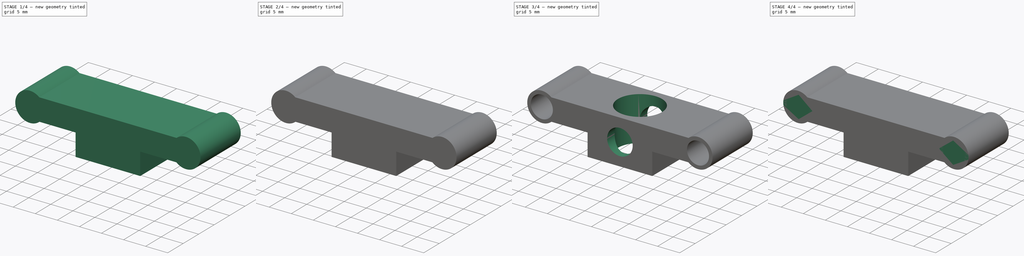
[diagram: build sequence overview — one tinted view per stage of 4, left to right]
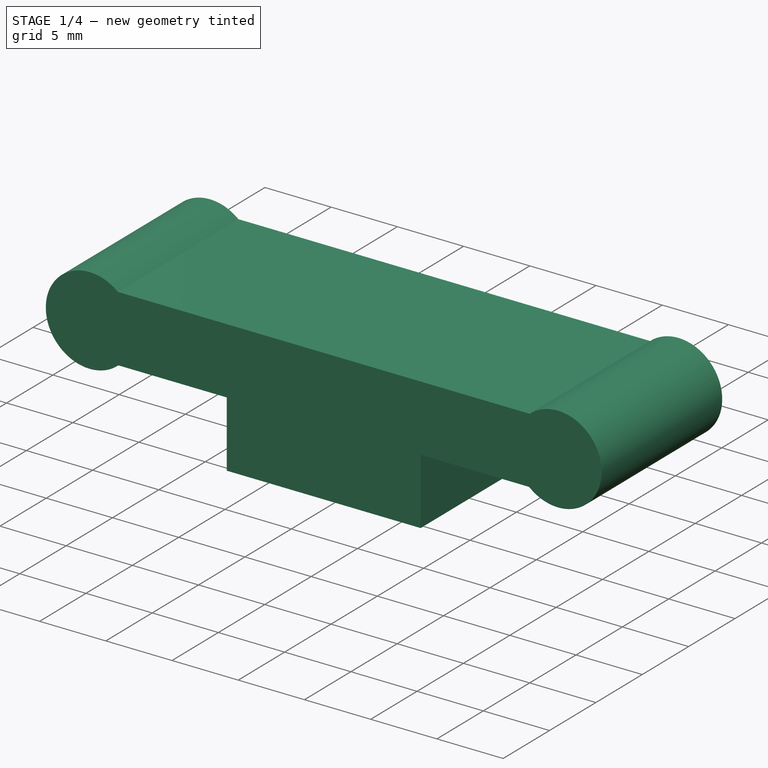
[diagram: stage 1 of 4 — iso view after this stage's code; geometry added in this stage tinted green]
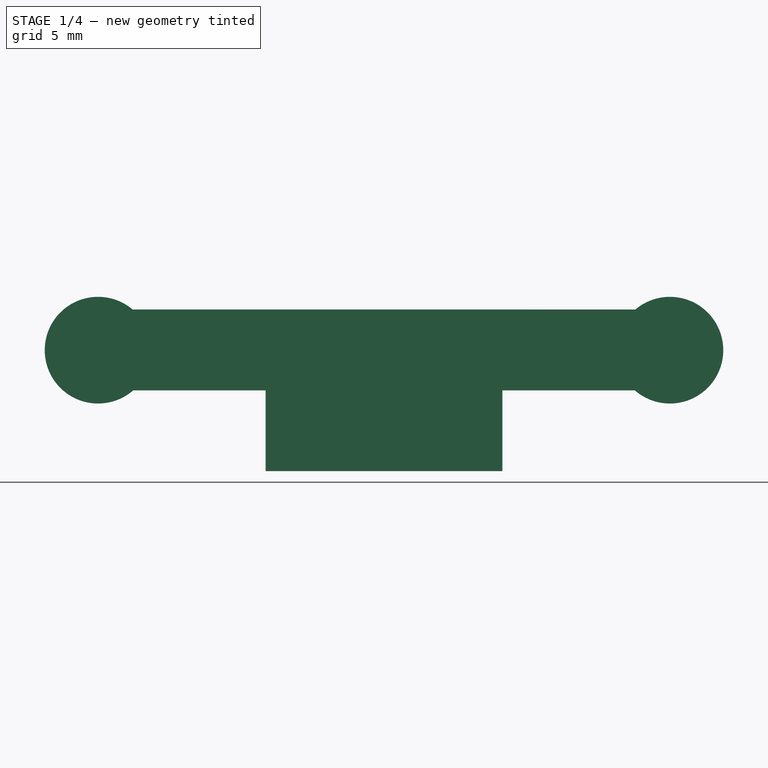
[diagram: stage 1 of 4 — front view after this stage's code; geometry added in this stage tinted green]
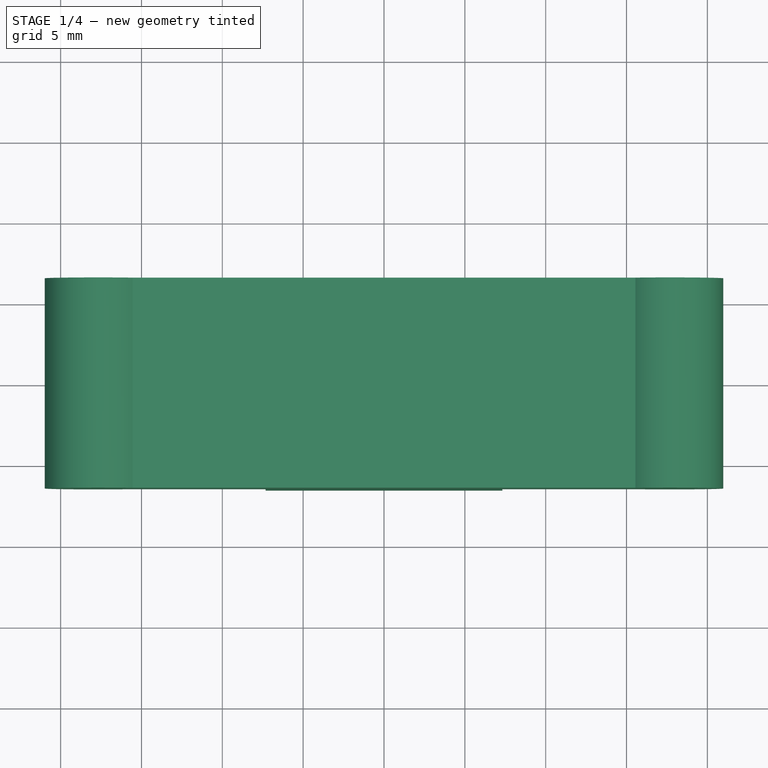
[diagram: stage 1 of 4 — top view after this stage's code; geometry added in this stage tinted green]
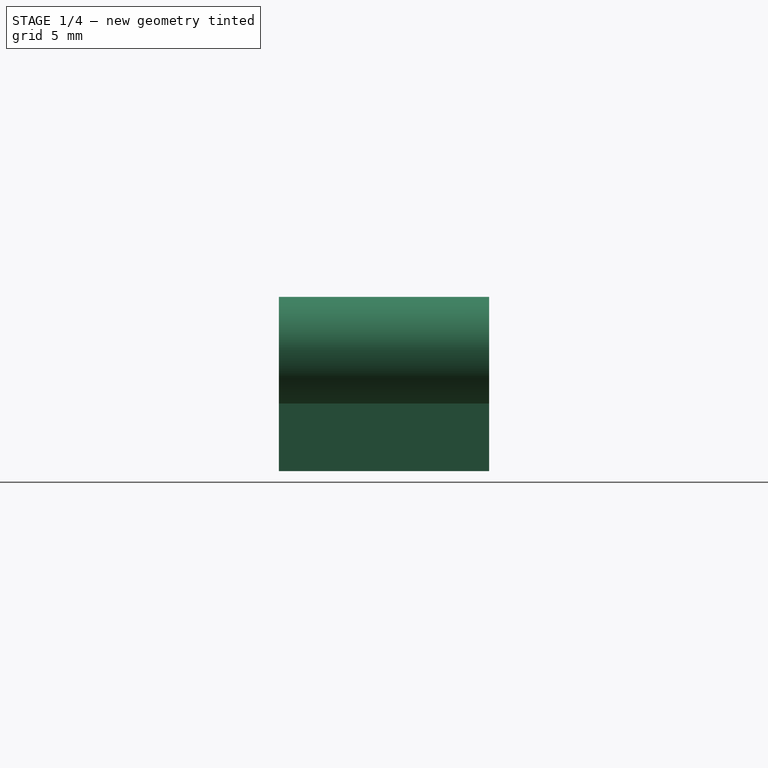
[diagram: stage 1 of 4 — right view after this stage's code; geometry added in this stage tinted green]
FCSTD DOCUMENT  (FreeCAD 0.16R6705 (Git))
Label: porta_cicalino_qavx2
License: All rights reserved
LicenseURL: http://it.wikipedia.org/wiki/<copyright redacted>
objects: Sketcher::SketchObject×7, PartDesign::Pad×4, Part::MultiFuse×3, PartDesign::Pocket×3, Part::Mirroring×1, Part::Cut×1, PartDesign::Mirrored×1, PartDesign::MultiTransform×1
note: 28 computed .brp shape members not serialized (recipe doc carries the construction recipe); baked Part::Feature solids carry a one-line shape summary decoded from their .brp

FEATURE [Sketcher::SketchObject] Sketch
  sketch-geometry (4):
    g0: LineSegment StartX=-17.5 StartY=6.5 StartZ=0 EndX=17.5 EndY=6.5 EndZ=0
    g1: LineSegment StartX=17.5 StartY=6.5 StartZ=0 EndX=17.5 EndY=-6.5 EndZ=0
    g2: LineSegment StartX=17.5 StartY=-6.5 StartZ=0 EndX=-17.5 EndY=-6.5 EndZ=0
    g3: LineSegment StartX=-17.5 StartY=-6.5 StartZ=0 EndX=-17.5 EndY=6.5 EndZ=0
  constraints (12):
    c: Coincident(g0,g1)
    c: Coincident(g1,g2)
    c: Coincident(g2,g3)
    c: Coincident(g3,g0)
    c: Horizontal(g0)
    c: Horizontal(g2)
    c: Vertical(g1)
    c: Vertical(g3)
    c: Symmetric(g0,g0,g-2)
    c: Symmetric(g0,g1,g-1)
    c: DistanceX(g0,g0) = 35
    c: DistanceY(g2,g0) = 13
FEATURE [PartDesign::Pad] Pad
  Length = 5
  Length2 = 100
  Sketch = -> Sketch
  Type = 0
FEATURE [Sketcher::SketchObject] Sketch003
  Placement = pos=(0,-6.5,0) rot=(1,0,0;1.5708rad)
  Support = -> Pad [Face3]
  sketch-geometry (2):
    g0: Circle CenterX=17.6839 CenterY=2.4839 CenterZ=0 NormalX=0 NormalY=0 NormalZ=1 Radius=3.3
    g1: Circle CenterX=-17.6839 CenterY=2.4839 CenterZ=0 NormalX=0 NormalY=0 NormalZ=1 Radius=3.3
  constraints (2):
    c: Radius(g0) = 3.3
    c: Radius(g1) = 3.3
FEATURE [PartDesign::Pad] Pad003
  Length = 13
  Length2 = 100
  Reversed = true
  Sketch = -> Sketch003
  Type = 0
FEATURE [Sketcher::SketchObject] Sketch005
  Placement = pos=(0,0,0) rot=(1,0,0;3.14159rad)
  sketch-geometry (4):
    g0: LineSegment StartX=-7.31822 StartY=6.5 StartZ=0 EndX=7.31822 EndY=6.5 EndZ=0
    g1: LineSegment StartX=7.31822 StartY=6.5 StartZ=0 EndX=7.31822 EndY=-6.5 EndZ=0
    g2: LineSegment StartX=7.31822 StartY=-6.5 StartZ=0 EndX=-7.31822 EndY=-6.5 EndZ=0
    g3: LineSegment StartX=-7.31822 StartY=-6.5 StartZ=0 EndX=-7.31822 EndY=6.5 EndZ=0
  constraints (9):
    c: Coincident(g0,g1)
    c: Coincident(g1,g2)
    c: Coincident(g2,g3)
    c: Coincident(g3,g0)
    c: Horizontal(g0)
    c: Horizontal(g2)
    c: Vertical(g1)
    c: Vertical(g3)
    c: Symmetric(g0,g0,g-2)
FEATURE [PartDesign::Pad] Pad004
  Length = 5
  Length2 = 100
  Placement = pos=(0,0,0) rot=(1,0,0;3.14159rad)
  Sketch = -> Sketch005
  Type = 0
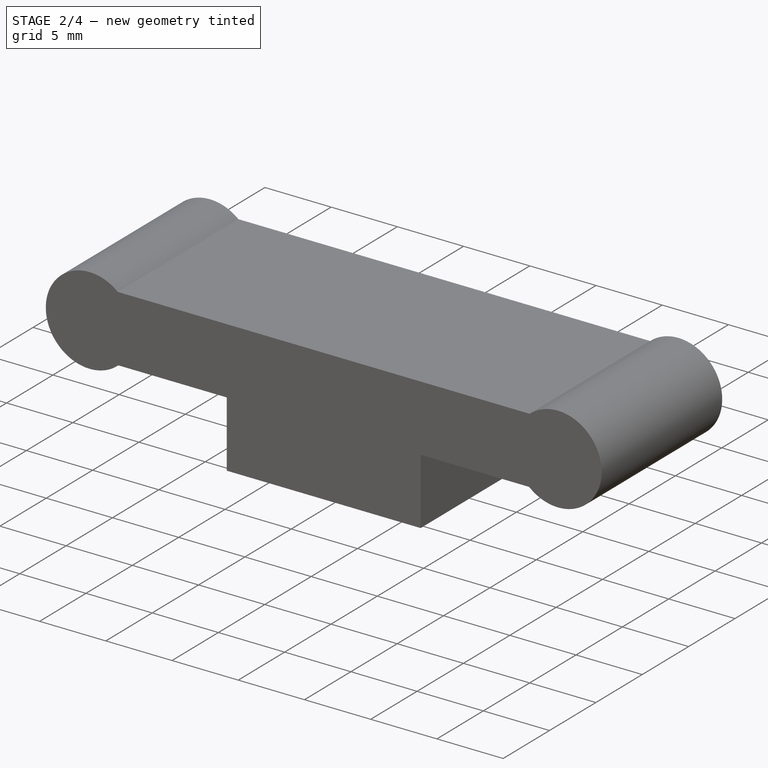
[diagram: stage 2 of 4 — iso view after this stage's code; geometry added in this stage tinted green]
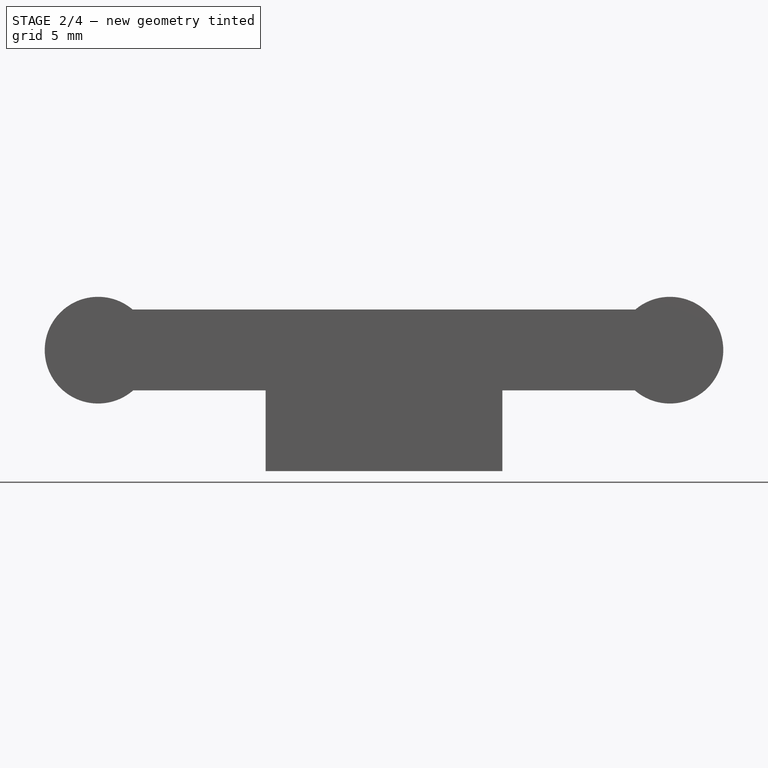
[diagram: stage 2 of 4 — front view after this stage's code; geometry added in this stage tinted green]
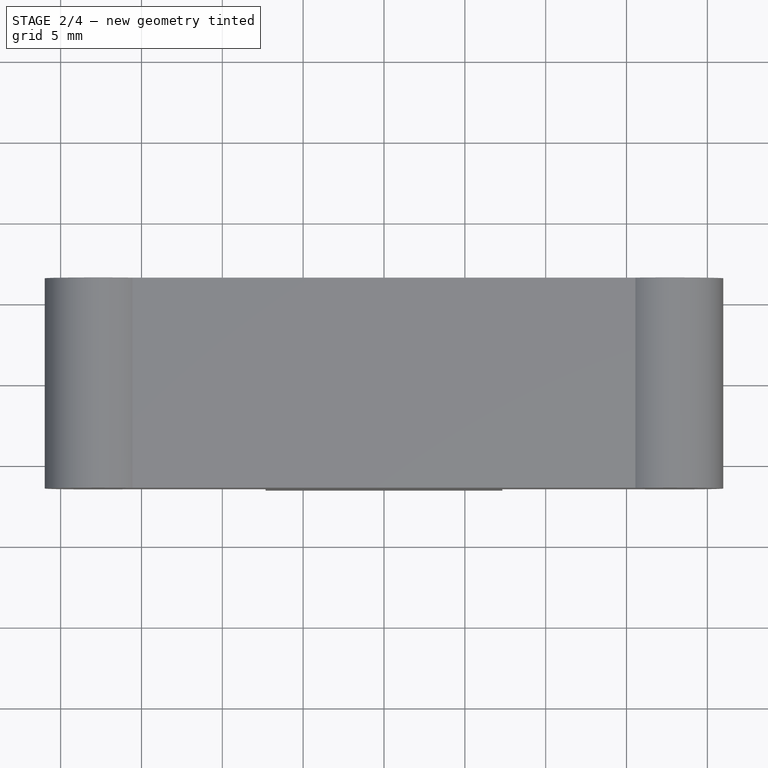
[diagram: stage 2 of 4 — top view after this stage's code; geometry added in this stage tinted green]
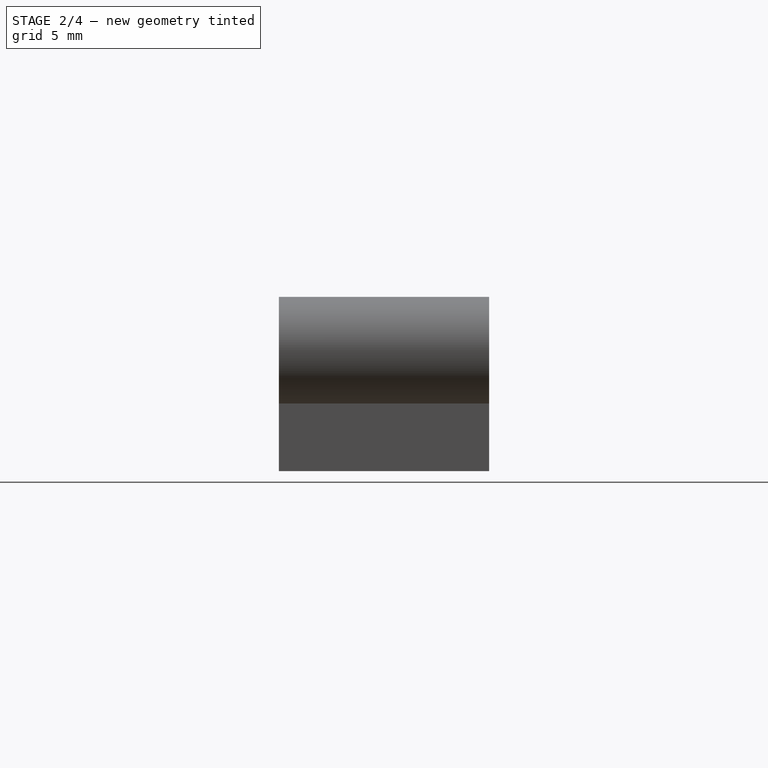
[diagram: stage 2 of 4 — right view after this stage's code; geometry added in this stage tinted green]
FEATURE [Sketcher::SketchObject] Sketch002
  Placement = pos=(0,-6.5,0) rot=(1,0,0;1.5708rad)
  sketch-geometry (1):
    g0: Circle CenterX=17.6839 CenterY=2.4839 CenterZ=0 NormalX=0 NormalY=0 NormalZ=1 Radius=2.5
  constraints (1):
    c: Radius(g0) = 2.5
FEATURE [PartDesign::Pad] Pad002
  Length = 13
  Length2 = 100
  Placement = pos=(0,-6.5,0) rot=(1,0,0;1.5708rad)
  Reversed = true
  Sketch = -> Sketch002
  Type = 0
FEATURE [Part::Mirroring] Part__Mirroring001  label="Pad002 (Mirror #2)"
  Base = (2.38419e-07,0,2.4839)
  Normal = (1,0,-1.19209e-07)
  Source = -> Pad002
FEATURE [Part::MultiFuse] Fusion001  label="scassi"
  Shapes = -> [Pad002,Part__Mirroring001]
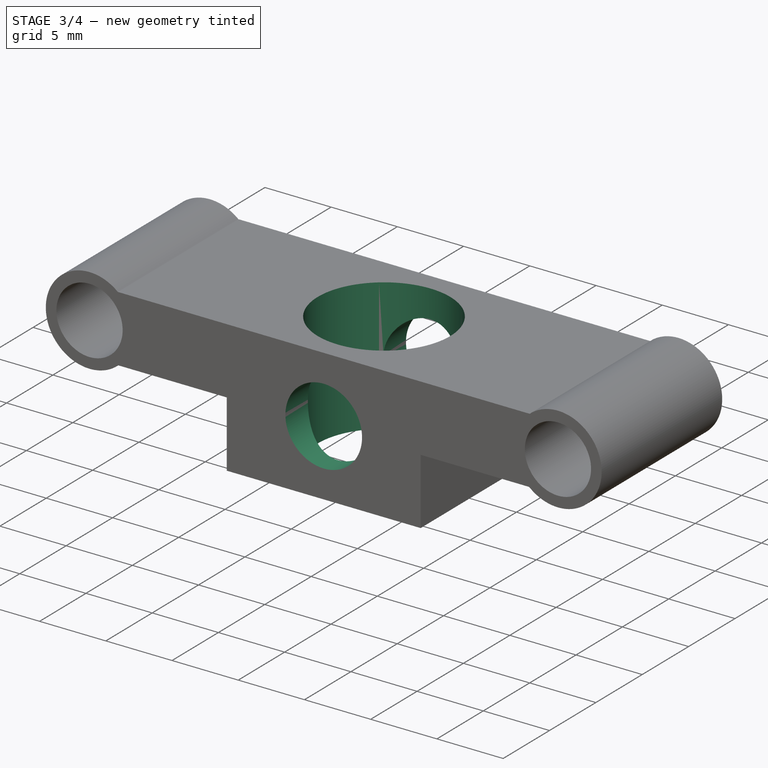
[diagram: stage 3 of 4 — iso view after this stage's code; geometry added in this stage tinted green]
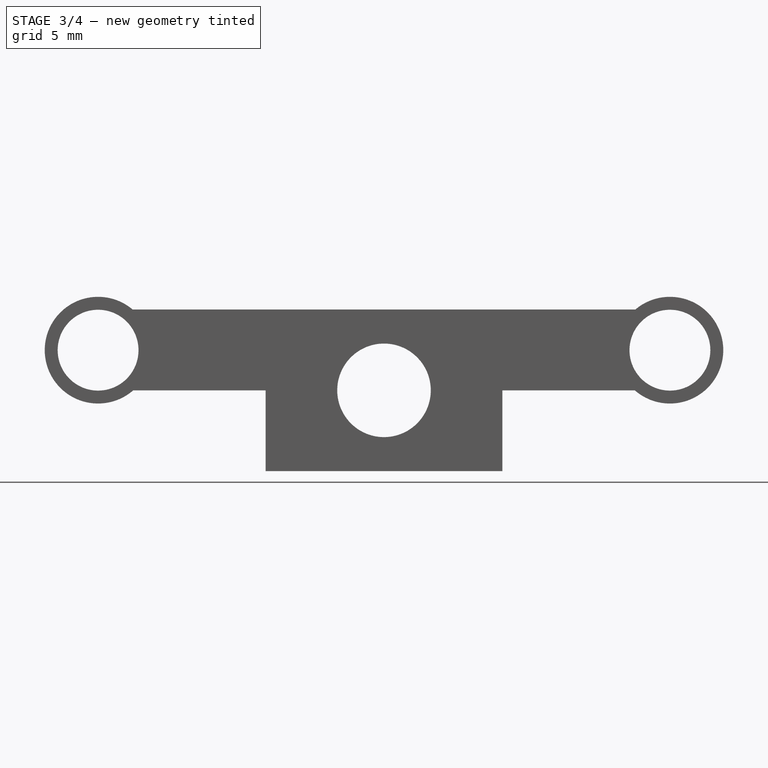
[diagram: stage 3 of 4 — front view after this stage's code; geometry added in this stage tinted green]
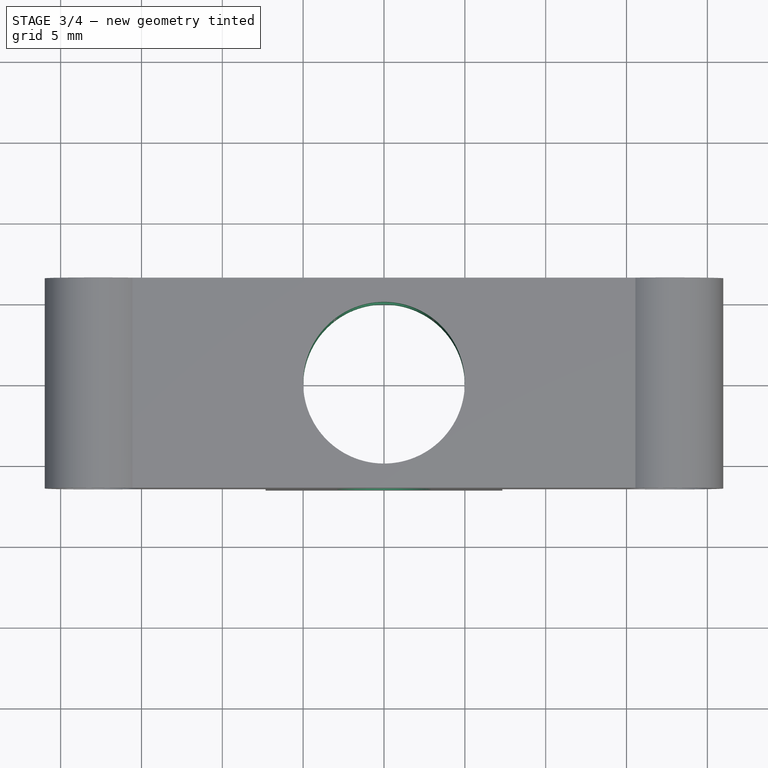
[diagram: stage 3 of 4 — top view after this stage's code; geometry added in this stage tinted green]
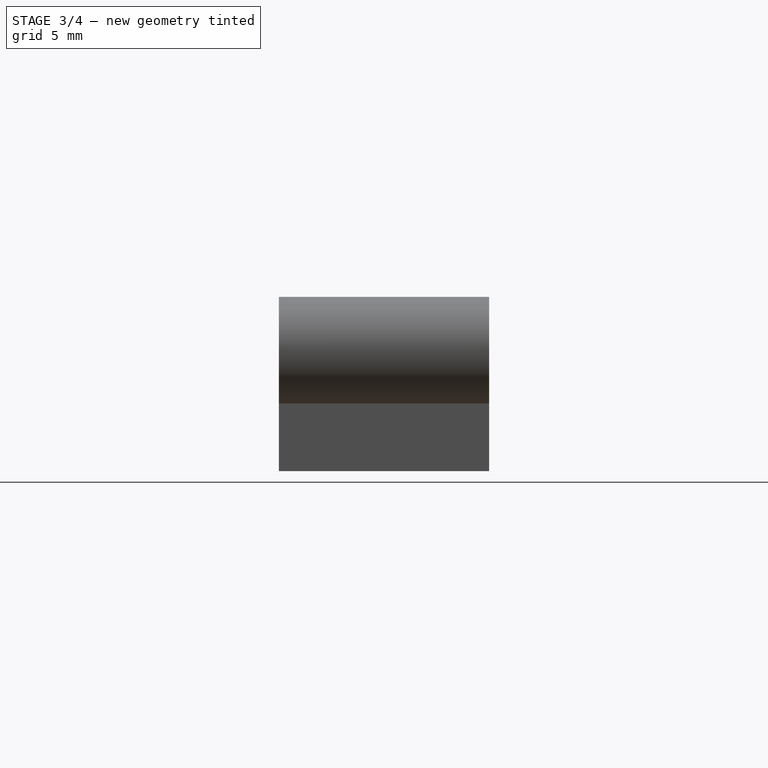
[diagram: stage 3 of 4 — right view after this stage's code; geometry added in this stage tinted green]
FEATURE [Part::Cut] Cut
  Base = -> Pad003
  Tool = -> Fusion001
FEATURE [Part::MultiFuse] Fusion002
  Shapes = -> [Pad004,Cut]
FEATURE [Sketcher::SketchObject] Sketch004
  Placement = pos=(0,0,5) rot=(0,0,1;0rad)
  Support = -> Fusion002 [Face11]
  sketch-geometry (1):
    g0: Circle CenterX=0 CenterY=0 CenterZ=0 NormalX=0 NormalY=0 NormalZ=1 Radius=5
  constraints (1):
    c: Radius(g0) = 5
FEATURE [PartDesign::Pocket] Pocket
  Length = 5
  Sketch = -> Sketch004
  Type = 1
FEATURE [Sketcher::SketchObject] Sketch006
  Placement = pos=(0,-6.5,0) rot=(1,0,0;1.5708rad)
  Support = -> Pocket [Face7]
  sketch-geometry (1):
    g0: Circle CenterX=0 CenterY=0 CenterZ=0 NormalX=0 NormalY=0 NormalZ=1 Radius=2.89325
FEATURE [PartDesign::Pocket] Pocket001
  Length = 5
  Sketch = -> Sketch006
  Type = 1
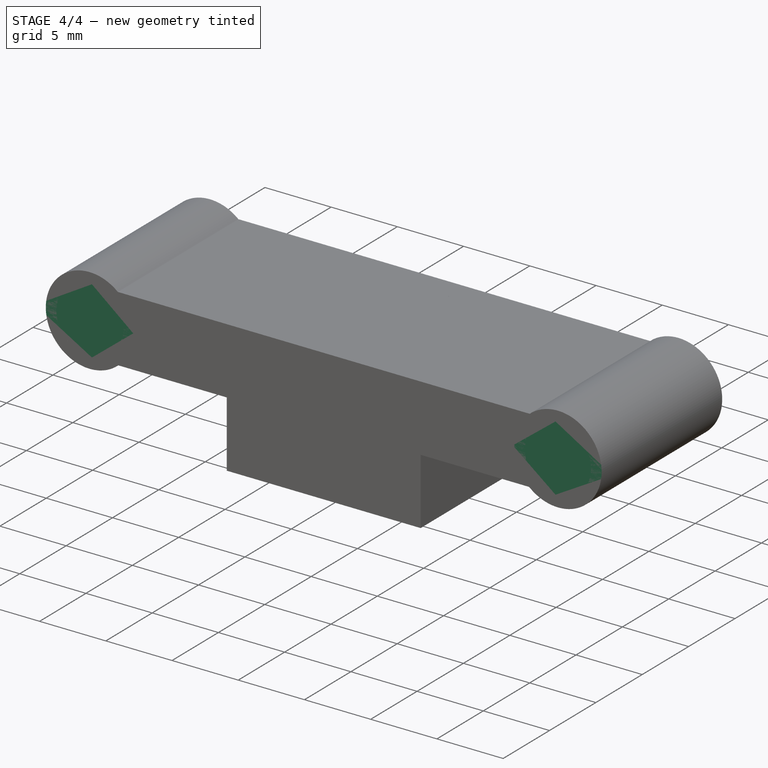
[diagram: stage 4 of 4 — iso view after this stage's code; geometry added in this stage tinted green]
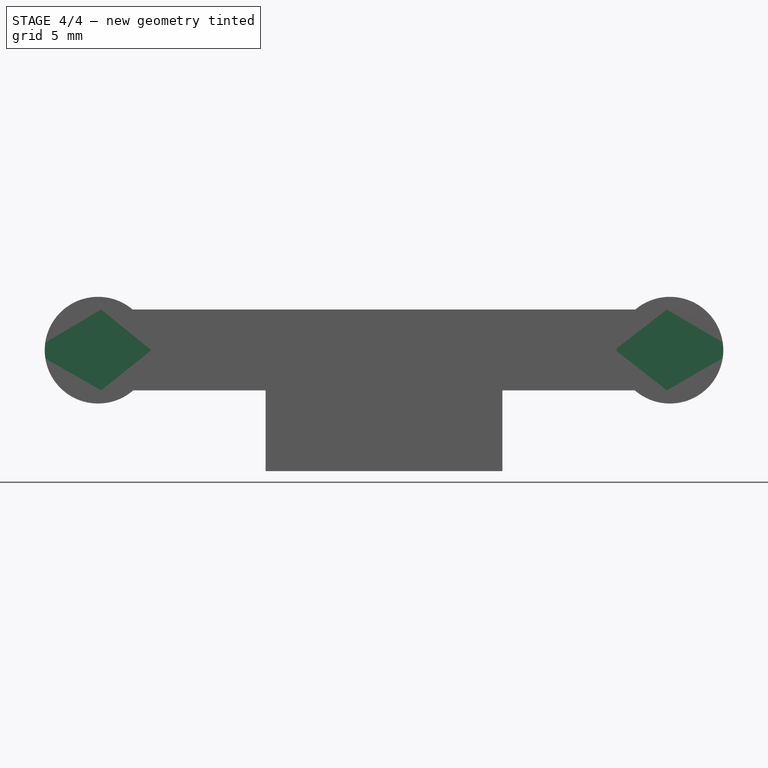
[diagram: stage 4 of 4 — front view after this stage's code; geometry added in this stage tinted green]
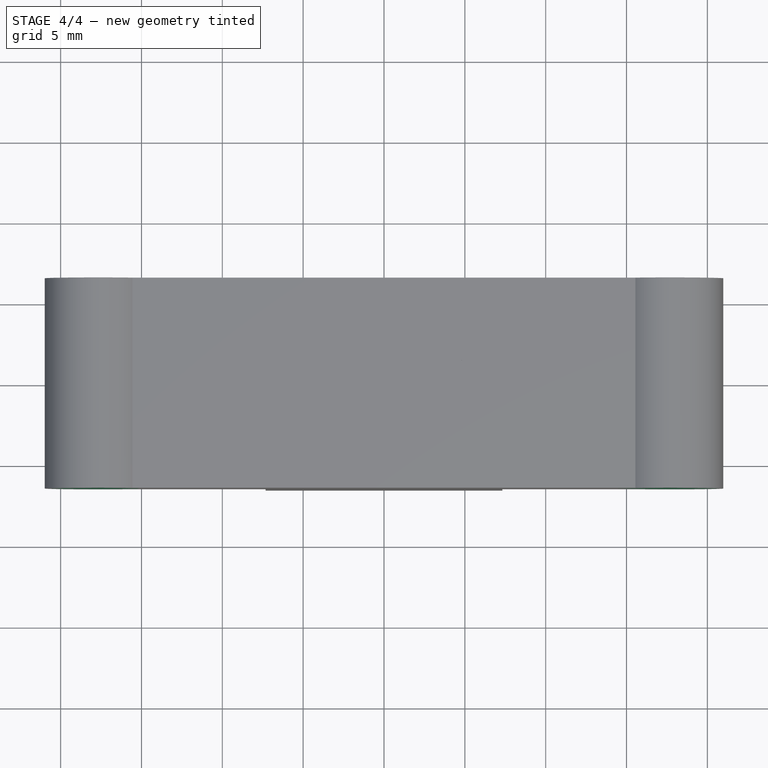
[diagram: stage 4 of 4 — top view after this stage's code; geometry added in this stage tinted green]
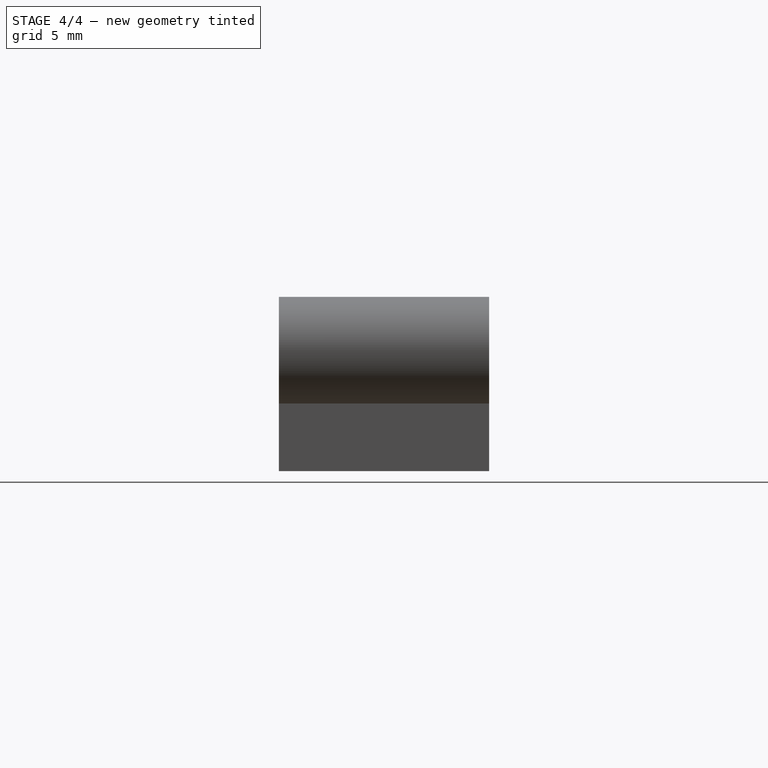
[diagram: stage 4 of 4 — right view after this stage's code; geometry added in this stage tinted green]
FEATURE [Part::MultiFuse] Fusion
  Shapes = -> [Pad003,Pad004]
FEATURE [Sketcher::SketchObject] Sketch007
  Placement = pos=(0,-6.5,0) rot=(1,0,0;1.5708rad)
  Support = -> Pocket001 [Face7]
  sketch-geometry (1):
    g0: Circle CenterX=9 CenterY=2.5 CenterZ=0 NormalX=0 NormalY=0 NormalZ=1 Radius=1.21802
  constraints (2):
    c: DistanceY(g-1,g0) = 2.5
    c: DistanceX(g-1,g0) = 9
FEATURE [PartDesign::Pocket] Pocket002
  Length = 5
  Sketch = -> Sketch007
  Type = 1
FEATURE [PartDesign::Mirrored] Mirrored
  MirrorPlane = -> Sketch007 [V_Axis]
FEATURE [PartDesign::MultiTransform] MultiTransform
  Originals = -> [Pocket002]
  Transformations = -> [Mirrored]
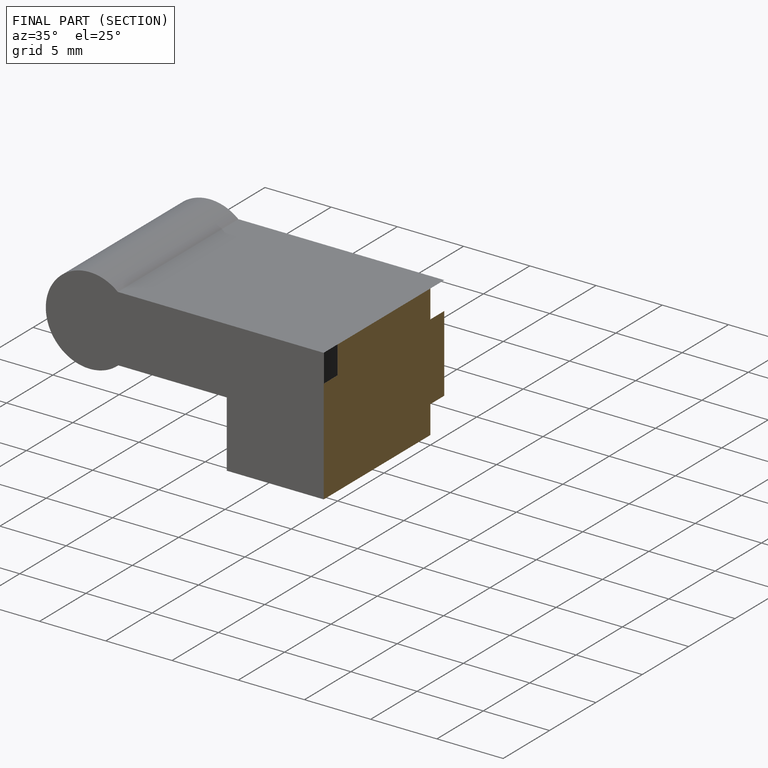
[diagram: finished part — half-section view (interior)]
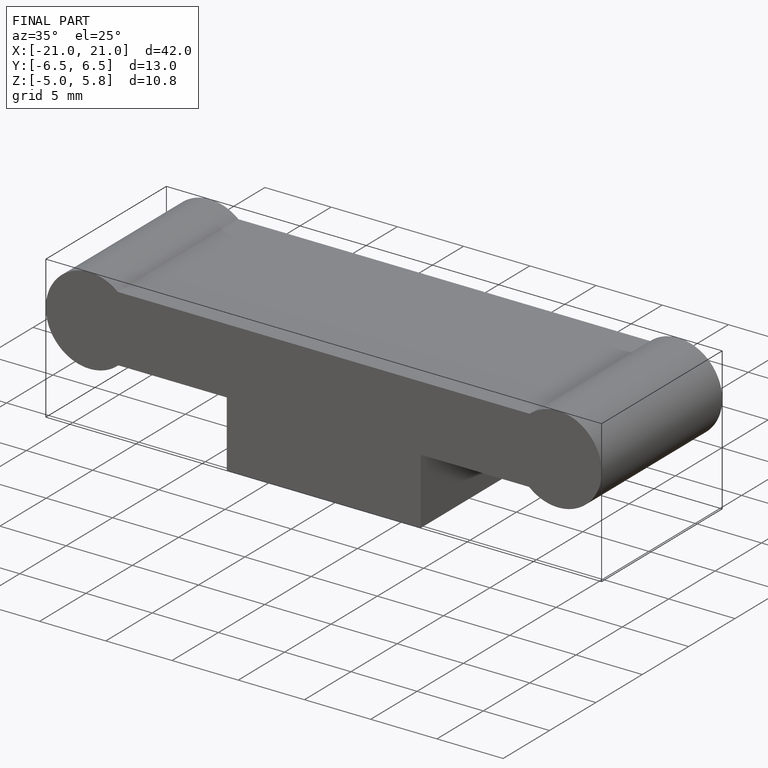
[diagram: finished part — iso view with bounding-box wireframe]
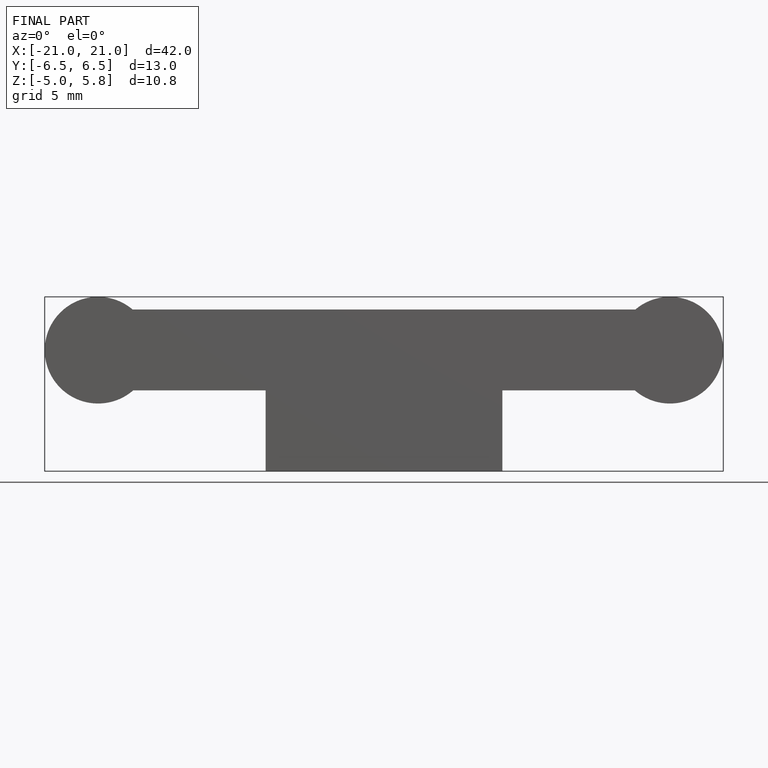
[diagram: finished part — front view with bounding-box wireframe]
